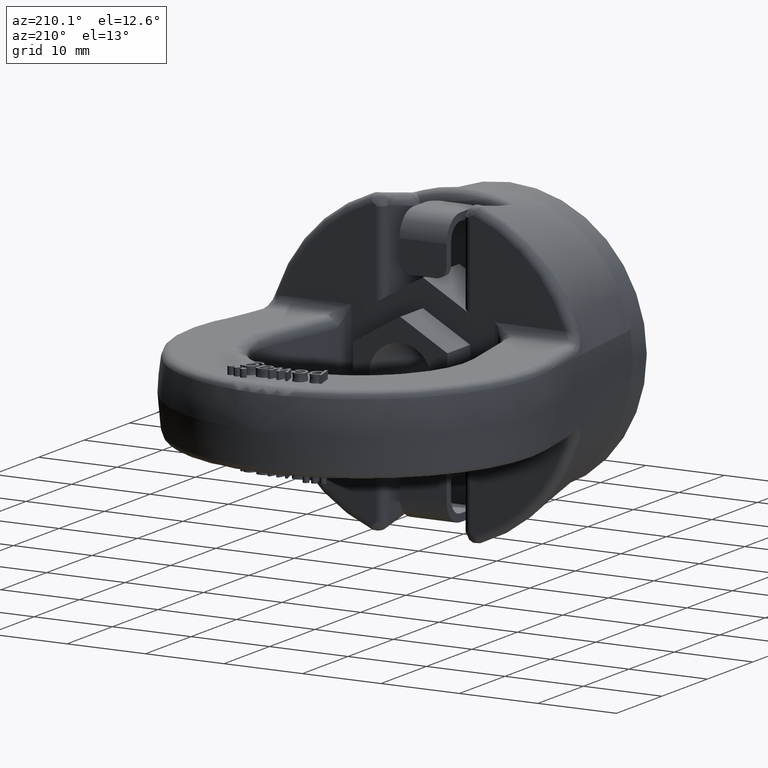
[diagram: clean part render]
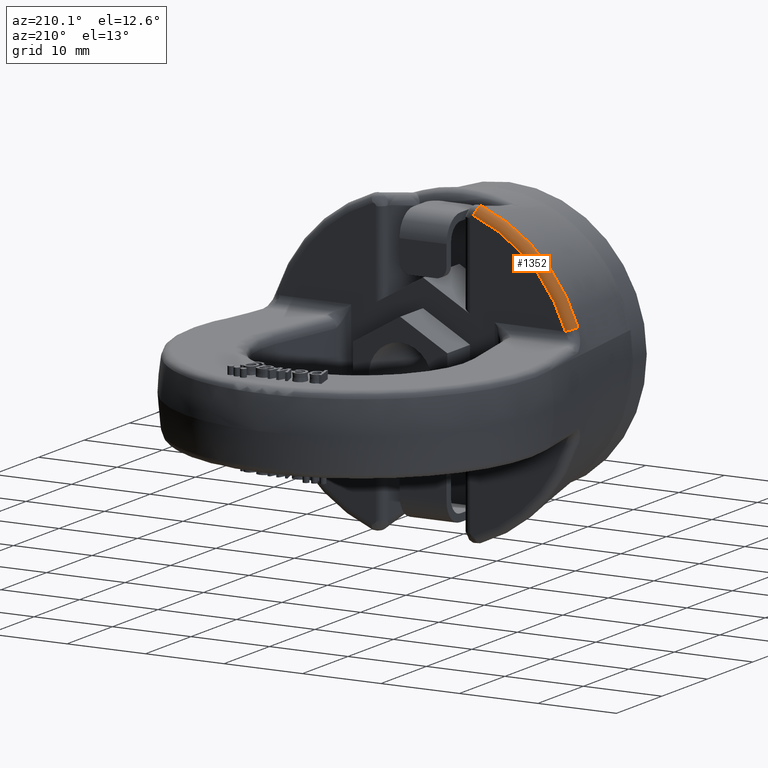
[diagram: same view with one face highlighted and labeled with its STEP entity id]
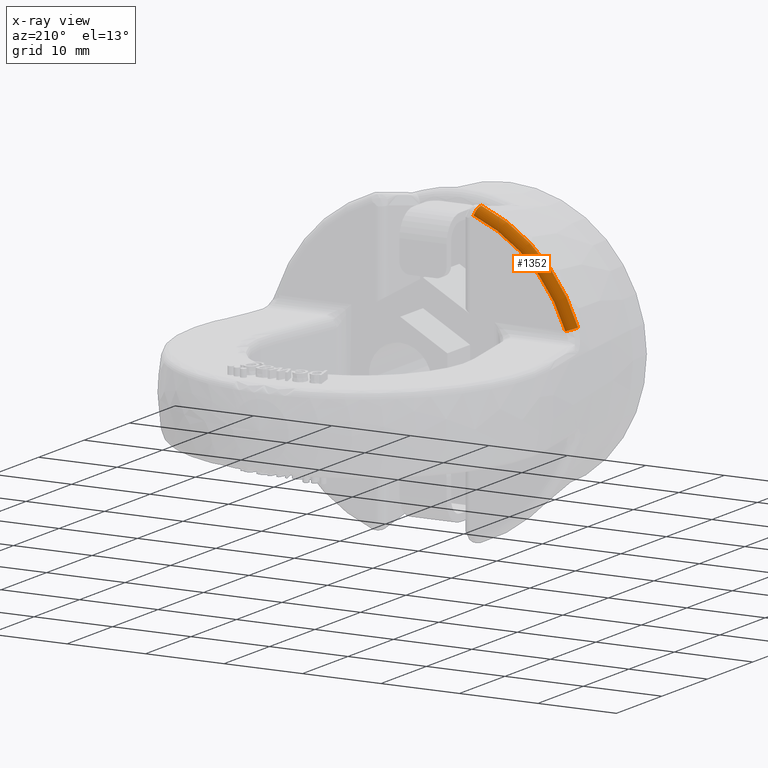
[diagram: x-ray of the same camera — body ghosted, the highlighted face saturated]
A machine part, auxiliary view. The second image highlights one B-rep face of the part: STEP entity #1352.
The next image is the same camera in x-ray: the body ghosted, the highlighted face saturated — about 0% of this face is hidden behind the body in this view.
In plain terms, the highlighted toroidal blend (fillet) surface has major radius 19.2139 mm and minor (blend) radius 1 mm.
Its self-contained STEP definition (entity closure, byte-faithful):
#1015=TOROIDAL_SURFACE('',#5170,19.2139274039994,1.);
#1127=FACE_OUTER_BOUND('',#1871,.T.);
#1352=ADVANCED_FACE('',(#1127),#1015,.T.);
#1689=CIRCLE('',#5118,20.1977616704627);
#1697=CIRCLE('',#5132,19.2139274039994);
#1703=CIRCLE('',#5168,1.);
#1704=CIRCLE('',#5169,1.);
#1871=EDGE_LOOP('',(#2916,#2917,#2918,#2919));
#2916=ORIENTED_EDGE('',*,*,#4419,.T.);
#2917=ORIENTED_EDGE('',*,*,#4367,.F.);
#2918=ORIENTED_EDGE('',*,*,#4420,.F.);
#2919=ORIENTED_EDGE('',*,*,#4339,.F.);
#3953=VERTEX_POINT('',#6696);
#3954=VERTEX_POINT('',#6698);
#3978=VERTEX_POINT('',#6810);
#3979=VERTEX_POINT('',#6812);
#4339=EDGE_CURVE('',#3953,#3954,#1689,.T.);
#4367=EDGE_CURVE('',#3978,#3979,#1697,.T.);
#4419=EDGE_CURVE('',#3953,#3979,#1703,.T.);
#4420=EDGE_CURVE('',#3954,#3978,#1704,.T.);
#5118=AXIS2_PLACEMENT_3D('',#6697,#5446,#5447);
#5132=AXIS2_PLACEMENT_3D('',#6811,#5488,#5489);
#5168=AXIS2_PLACEMENT_3D('',#7078,#5586,#5587);
#5169=AXIS2_PLACEMENT_3D('',#7097,#5588,#5589);
#5170=AXIS2_PLACEMENT_3D('',#7098,#5590,#5591);
#5446=DIRECTION('',(0.,-1.,0.));
#5447=DIRECTION('',(0.,0.,-1.));
#5488=DIRECTION('',(0.,1.,0.));
#5489=DIRECTION('',(0.,0.,1.));
#5586=DIRECTION('',(-0.942095139671006,1.0243104155054E-12,-0.335345713865957));
#5587=DIRECTION('',(-0.335345713865957,0.,0.942095139671004));
#5588=DIRECTION('',(-0.329622008044801,-1.10106003517992E-15,-0.944112986783104));
#5589=DIRECTION('',(-0.944112986783104,0.,0.329622008044801));
#5590=DIRECTION('',(0.,1.,0.));
#5591=DIRECTION('',(0.,0.,1.));
#6696=CARTESIAN_POINT('',(-6.77323280588442,17.8209186326477,19.0282131019732));
#6697=CARTESIAN_POINT('',(-8.61226386306943E-14,17.8209186326477,0.));
#6698=CARTESIAN_POINT('',(-19.0689690970339,17.8209186326477,6.65762675982823));
#6810=CARTESIAN_POINT('',(-18.1401183892237,19.,6.33333333333334));
#6811=CARTESIAN_POINT('',(-1.26988671886554E-13,19.,4.93823219010958E-14));
#6812=CARTESIAN_POINT('',(-6.44330820147008,19.,18.1013476212969));
#7078=CARTESIAN_POINT('',(-6.44330820147102,18.,18.1013476212965));
#7097=CARTESIAN_POINT('',(-18.1401183892237,18.,6.33333333333334));
#7098=CARTESIAN_POINT('',(-1.26988671886554E-13,18.,4.93823219010958E-14));